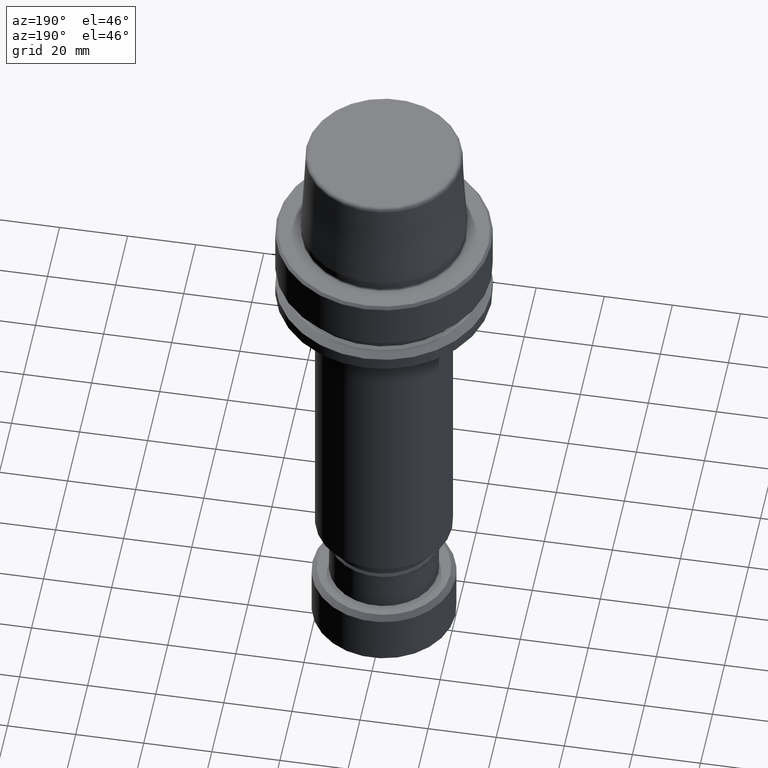
[diagram: clean part render]
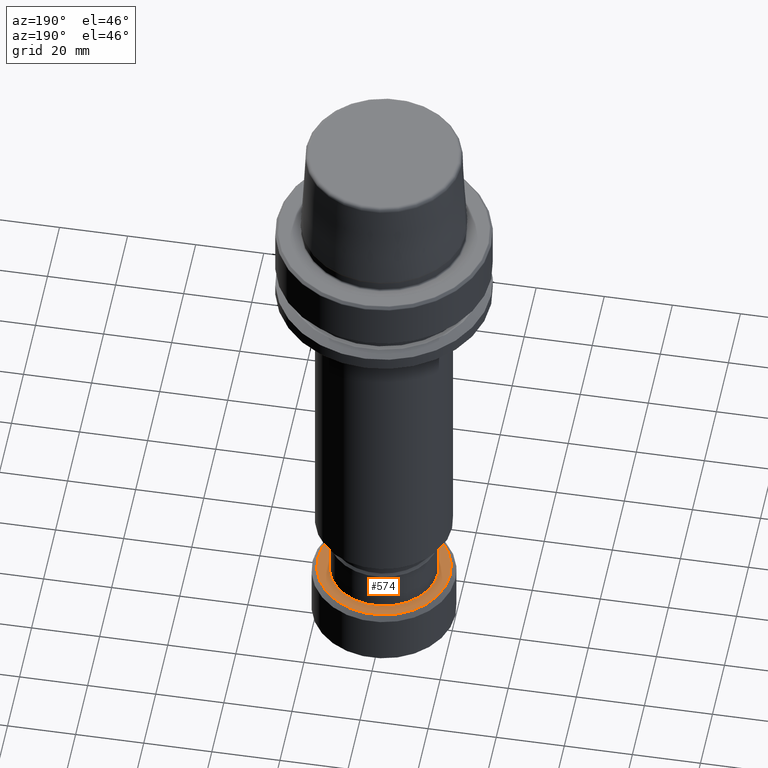
[diagram: same view with one face highlighted and labeled with its STEP entity id]
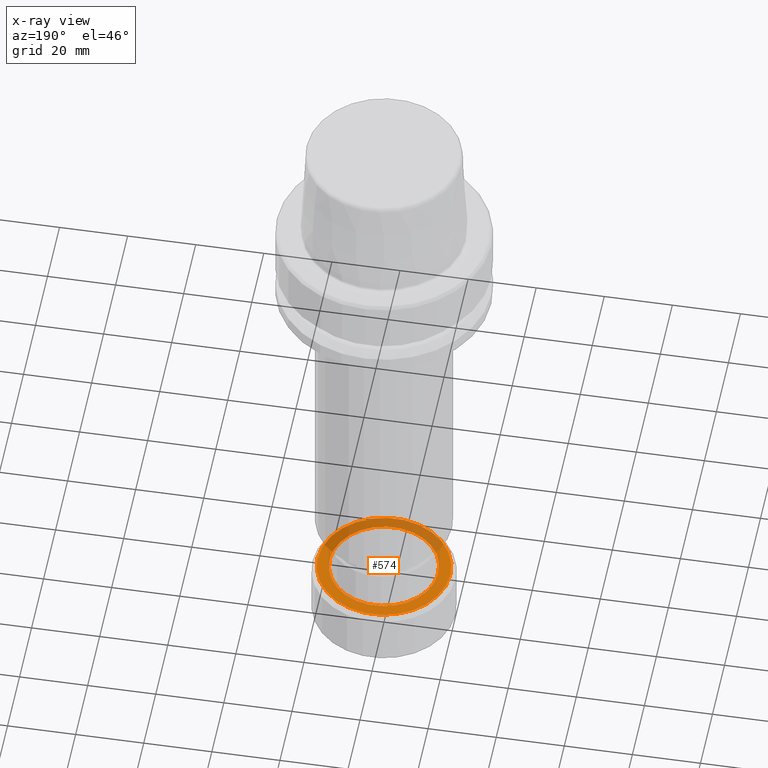
[diagram: x-ray of the same camera — body ghosted, the highlighted face saturated]
A machine part, auxiliary view. The second image highlights one B-rep face of the part: STEP entity #574.
The next image is the same camera in x-ray: the body ghosted, the highlighted face saturated — about 37% of this face is hidden behind the body in this view.
In plain terms, the highlighted planar face has unit normal (0, 0, -1).
Its self-contained STEP definition (entity closure, byte-faithful):
#41 = VERTEX_POINT ( 'NONE', #530 ) ;
#50 = EDGE_CURVE ( 'NONE', #229, #41, #1080, .T. ) ;
#62 = CIRCLE ( 'NONE', #331, 15.94999999999999900 ) ;
#78 = CARTESIAN_POINT ( 'NONE',  ( 0.0000000000000000000, 0.0000000000000000000, -140.0000000000000000 ) ) ;
#106 = EDGE_CURVE ( 'NONE', #1291, #597, #379, .T. ) ;
#111 = DIRECTION ( 'NONE',  ( -0.0000000000000000000, -0.0000000000000000000, 1.000000000000000000 ) ) ;
#128 = DIRECTION ( 'NONE',  ( -1.000000000000000000, 0.0000000000000000000, -0.0000000000000000000 ) ) ;
#132 = EDGE_CURVE ( 'NONE', #41, #229, #62, .T. ) ;
#133 = CARTESIAN_POINT ( 'NONE',  ( 0.0000000000000000000, 0.0000000000000000000, -140.0000000000000000 ) ) ;
#186 = EDGE_LOOP ( 'NONE', ( #1017, #1562 ) ) ;
#216 = DIRECTION ( 'NONE',  ( 1.000000000000000000, 0.0000000000000000000, 0.0000000000000000000 ) ) ;
#229 = VERTEX_POINT ( 'NONE', #407 ) ;
#265 = DIRECTION ( 'NONE',  ( -0.0000000000000000000, -0.0000000000000000000, 1.000000000000000000 ) ) ;
#331 = AXIS2_PLACEMENT_3D ( 'NONE', #1285, #1367, #216 ) ;
#359 = ORIENTED_EDGE ( 'NONE', *, *, #50, .F. ) ;
#379 = CIRCLE ( 'NONE', #429, 19.50000000000000000 ) ;
#407 = CARTESIAN_POINT ( 'NONE',  ( 15.94999999999999900, 0.0000000000000000000, -140.0000000000000000 ) ) ;
#413 = EDGE_CURVE ( 'NONE', #597, #1291, #1062, .T. ) ;
#429 = AXIS2_PLACEMENT_3D ( 'NONE', #133, #265, #519 ) ;
#519 = DIRECTION ( 'NONE',  ( 1.000000000000000000, 0.0000000000000000000, 0.0000000000000000000 ) ) ;
#530 = CARTESIAN_POINT ( 'NONE',  ( -15.94999999999999900, 1.953311644640028100E-015, -140.0000000000000000 ) ) ;
#574 = ADVANCED_FACE ( 'NONE', ( #1526, #916 ), #605, .F. ) ;
#597 = VERTEX_POINT ( 'NONE', #1317 ) ;
#605 = PLANE ( 'NONE',  #807 ) ;
#612 = CARTESIAN_POINT ( 'NONE',  ( 0.0000000000000000000, 19.50000000000000000, -140.0000000000000000 ) ) ;
#759 = ORIENTED_EDGE ( 'NONE', *, *, #132, .F. ) ;
#807 = AXIS2_PLACEMENT_3D ( 'NONE', #612, #883, #128 ) ;
#873 = DIRECTION ( 'NONE',  ( 1.000000000000000000, 0.0000000000000000000, 0.0000000000000000000 ) ) ;
#882 = CARTESIAN_POINT ( 'NONE',  ( 19.50000000000000000, 2.479909768273390700E-015, -140.0000000000000000 ) ) ;
#883 = DIRECTION ( 'NONE',  ( 0.0000000000000000000, 0.0000000000000000000, -1.000000000000000000 ) ) ;
#911 = AXIS2_PLACEMENT_3D ( 'NONE', #1462, #1087, #1460 ) ;
#916 = FACE_OUTER_BOUND ( 'NONE', #186, .T. ) ;
#1017 = ORIENTED_EDGE ( 'NONE', *, *, #413, .T. ) ;
#1062 = CIRCLE ( 'NONE', #911, 19.50000000000000000 ) ;
#1080 = CIRCLE ( 'NONE', #1347, 15.94999999999999900 ) ;
#1087 = DIRECTION ( 'NONE',  ( -0.0000000000000000000, -0.0000000000000000000, 1.000000000000000000 ) ) ;
#1285 = CARTESIAN_POINT ( 'NONE',  ( 0.0000000000000000000, 0.0000000000000000000, -140.0000000000000000 ) ) ;
#1291 = VERTEX_POINT ( 'NONE', #882 ) ;
#1317 = CARTESIAN_POINT ( 'NONE',  ( -19.50000000000000000, 0.0000000000000000000, -140.0000000000000000 ) ) ;
#1347 = AXIS2_PLACEMENT_3D ( 'NONE', #78, #111, #873 ) ;
#1367 = DIRECTION ( 'NONE',  ( -0.0000000000000000000, -0.0000000000000000000, 1.000000000000000000 ) ) ;
#1451 = EDGE_LOOP ( 'NONE', ( #359, #759 ) ) ;
#1460 = DIRECTION ( 'NONE',  ( 1.000000000000000000, 0.0000000000000000000, 0.0000000000000000000 ) ) ;
#1462 = CARTESIAN_POINT ( 'NONE',  ( 0.0000000000000000000, 0.0000000000000000000, -140.0000000000000000 ) ) ;
#1526 = FACE_BOUND ( 'NONE', #1451, .T. ) ;
#1562 = ORIENTED_EDGE ( 'NONE', *, *, #106, .T. ) ;